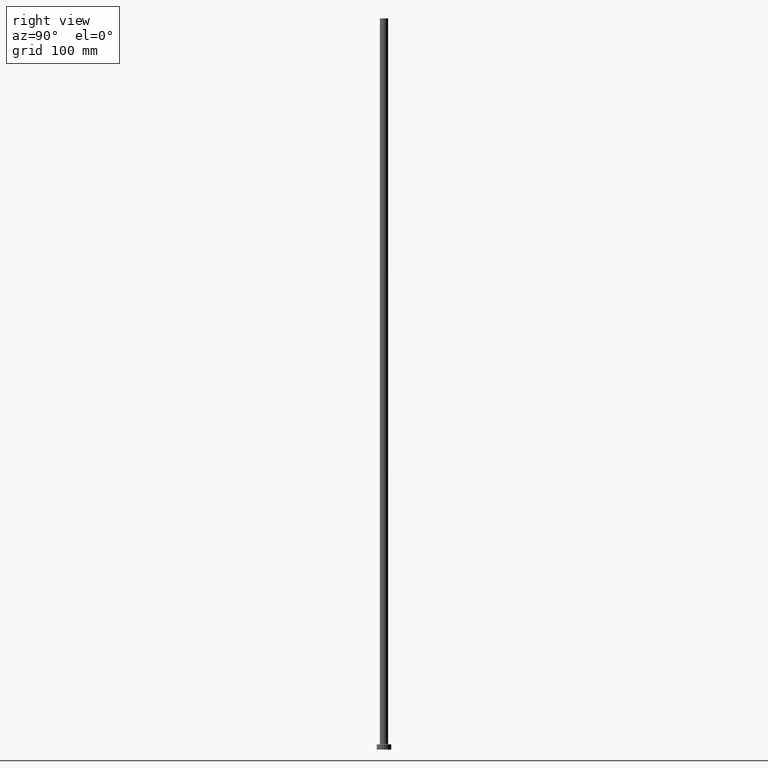
[diagram: clean part render]
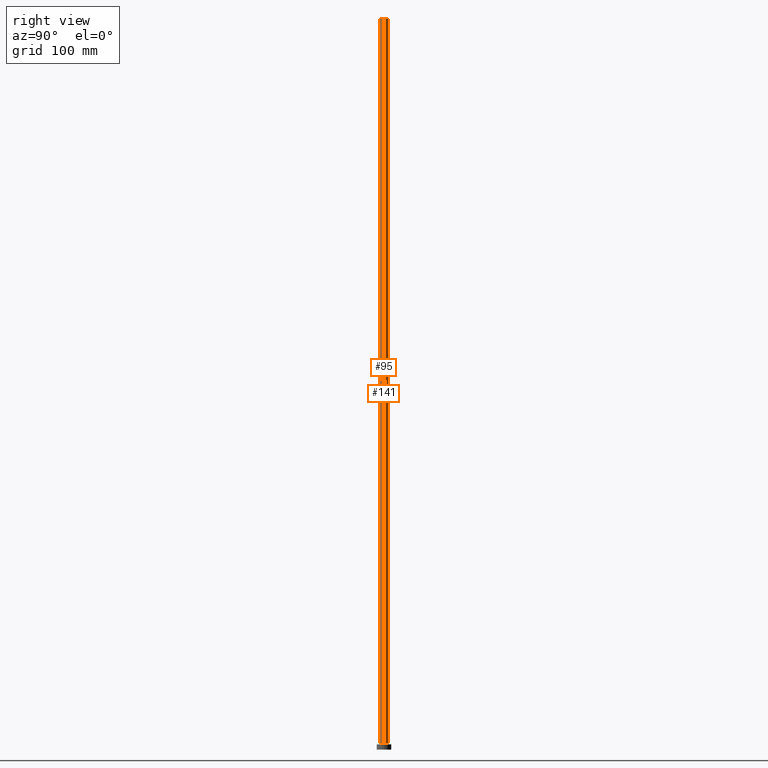
[diagram: same view with one multi-face feature highlighted, each face labeled with its STEP entity id]
A machine part, right view. The highlighted faces form ONE feature: a constant-radius fillet chain: 2 tangent blend faces with common blend radius 4 mm. The faces share edges in the B-rep.
Their STEP definitions:
[1] entity #141 (Cylinder):
#26 = DIRECTION ( 'NONE',  ( 0.000000000000000000, 0.000000000000000000, 1.000000000000000000 ) ) ;
#34 = VERTEX_POINT ( 'NONE', #139 ) ;
#39 = DIRECTION ( 'NONE',  ( -0.000000000000000000, -0.000000000000000000, -1.000000000000000000 ) ) ;
#62 = VERTEX_POINT ( 'NONE', #120 ) ;
#79 = CARTESIAN_POINT ( 'NONE',  ( 4.000000000000000000, 4.898587196589412829E-16, 700.0000000000000000 ) ) ;
#81 = CARTESIAN_POINT ( 'NONE',  ( 4.000000000000000000, 4.898587196589412829E-16, 700.0000000000000000 ) ) ;
#96 = VERTEX_POINT ( 'NONE', #81 ) ;
#101 = CARTESIAN_POINT ( 'NONE',  ( 0.000000000000000000, 0.000000000000000000, 700.0000000000000000 ) ) ;
#108 = DIRECTION ( 'NONE',  ( -1.000000000000000000, 0.000000000000000000, 0.000000000000000000 ) ) ;
#111 = CARTESIAN_POINT ( 'NONE',  ( 4.000000000000000000, 4.898587196589412829E-16, 5.499999999999949374 ) ) ;
#118 = EDGE_CURVE ( 'NONE', #96, #125, #358, .T. ) ;
#120 = CARTESIAN_POINT ( 'NONE',  ( -4.000000000000000000, 0.000000000000000000, 700.0000000000000000 ) ) ;
#125 = VERTEX_POINT ( 'NONE', #111 ) ;
#136 = CARTESIAN_POINT ( 'NONE',  ( 0.000000000000000000, 0.000000000000000000, 5.499999999999949374 ) ) ;
#138 = AXIS2_PLACEMENT_3D ( 'NONE', #136, #26, #444 ) ;
#139 = CARTESIAN_POINT ( 'NONE',  ( -4.000000000000000000, 0.000000000000000000, 5.499999999999949374 ) ) ;
#141 = ADVANCED_FACE ( 'NONE', ( #318 ), #461, .T. ) ;
#152 = CIRCLE ( 'NONE', #288, 4.000000000000000000 ) ;
#176 = CARTESIAN_POINT ( 'NONE',  ( -4.000000000000000000, 0.000000000000000000, 700.0000000000000000 ) ) ;
#184 = ORIENTED_EDGE ( 'NONE', *, *, #406, .F. ) ;
#205 = CARTESIAN_POINT ( 'NONE',  ( 0.000000000000000000, 0.000000000000000000, 700.0000000000000000 ) ) ;
#212 = DIRECTION ( 'NONE',  ( -0.000000000000000000, -0.000000000000000000, -1.000000000000000000 ) ) ;
#261 = VECTOR ( 'NONE', #212, 1000.000000000000000 ) ;
#288 = AXIS2_PLACEMENT_3D ( 'NONE', #101, #409, #412 ) ;
#303 = EDGE_CURVE ( 'NONE', #125, #34, #383, .T. ) ;
#309 = EDGE_CURVE ( 'NONE', #96, #62, #152, .T. ) ;
#318 = FACE_OUTER_BOUND ( 'NONE', #431, .T. ) ;
#320 = DIRECTION ( 'NONE',  ( -0.000000000000000000, -0.000000000000000000, -1.000000000000000000 ) ) ;
#334 = ORIENTED_EDGE ( 'NONE', *, *, #118, .T. ) ;
#349 = LINE ( 'NONE', #176, #460 ) ;
#358 = LINE ( 'NONE', #79, #261 ) ;
#382 = AXIS2_PLACEMENT_3D ( 'NONE', #205, #320, #108 ) ;
#383 = CIRCLE ( 'NONE', #138, 4.000000000000000000 ) ;
#401 = ORIENTED_EDGE ( 'NONE', *, *, #303, .T. ) ;
#406 = EDGE_CURVE ( 'NONE', #62, #34, #349, .T. ) ;
#409 = DIRECTION ( 'NONE',  ( 0.000000000000000000, 0.000000000000000000, 1.000000000000000000 ) ) ;
#412 = DIRECTION ( 'NONE',  ( 1.000000000000000000, 0.000000000000000000, 0.000000000000000000 ) ) ;
#431 = EDGE_LOOP ( 'NONE', ( #443, #334, #401, #184 ) ) ;
#443 = ORIENTED_EDGE ( 'NONE', *, *, #309, .F. ) ;
#444 = DIRECTION ( 'NONE',  ( 1.000000000000000000, 0.000000000000000000, 0.000000000000000000 ) ) ;
#460 = VECTOR ( 'NONE', #39, 1000.000000000000000 ) ;
#461 = CYLINDRICAL_SURFACE ( 'NONE', #382, 4.000000000000000000 ) ;
[2] entity #95 (Cylinder):
#6 = DIRECTION ( 'NONE',  ( -0.000000000000000000, -0.000000000000000000, -1.000000000000000000 ) ) ;
#24 = ORIENTED_EDGE ( 'NONE', *, *, #68, .F. ) ;
#34 = VERTEX_POINT ( 'NONE', #139 ) ;
#39 = DIRECTION ( 'NONE',  ( -0.000000000000000000, -0.000000000000000000, -1.000000000000000000 ) ) ;
#45 = CYLINDRICAL_SURFACE ( 'NONE', #323, 4.000000000000000000 ) ;
#62 = VERTEX_POINT ( 'NONE', #120 ) ;
#68 = EDGE_CURVE ( 'NONE', #62, #96, #227, .T. ) ;
#76 = CIRCLE ( 'NONE', #215, 4.000000000000000000 ) ;
#79 = CARTESIAN_POINT ( 'NONE',  ( 4.000000000000000000, 4.898587196589412829E-16, 700.0000000000000000 ) ) ;
#81 = CARTESIAN_POINT ( 'NONE',  ( 4.000000000000000000, 4.898587196589412829E-16, 700.0000000000000000 ) ) ;
#83 = CARTESIAN_POINT ( 'NONE',  ( 0.000000000000000000, 0.000000000000000000, 700.0000000000000000 ) ) ;
#95 = ADVANCED_FACE ( 'NONE', ( #394 ), #45, .T. ) ;
#96 = VERTEX_POINT ( 'NONE', #81 ) ;
#111 = CARTESIAN_POINT ( 'NONE',  ( 4.000000000000000000, 4.898587196589412829E-16, 5.499999999999949374 ) ) ;
#118 = EDGE_CURVE ( 'NONE', #96, #125, #358, .T. ) ;
#120 = CARTESIAN_POINT ( 'NONE',  ( -4.000000000000000000, 0.000000000000000000, 700.0000000000000000 ) ) ;
#125 = VERTEX_POINT ( 'NONE', #111 ) ;
#139 = CARTESIAN_POINT ( 'NONE',  ( -4.000000000000000000, 0.000000000000000000, 5.499999999999949374 ) ) ;
#148 = DIRECTION ( 'NONE',  ( 0.000000000000000000, 0.000000000000000000, 1.000000000000000000 ) ) ;
#176 = CARTESIAN_POINT ( 'NONE',  ( -4.000000000000000000, 0.000000000000000000, 700.0000000000000000 ) ) ;
#180 = EDGE_CURVE ( 'NONE', #34, #125, #76, .T. ) ;
#212 = DIRECTION ( 'NONE',  ( -0.000000000000000000, -0.000000000000000000, -1.000000000000000000 ) ) ;
#215 = AXIS2_PLACEMENT_3D ( 'NONE', #285, #148, #287 ) ;
#227 = CIRCLE ( 'NONE', #306, 4.000000000000000000 ) ;
#251 = DIRECTION ( 'NONE',  ( 0.000000000000000000, 0.000000000000000000, 1.000000000000000000 ) ) ;
#261 = VECTOR ( 'NONE', #212, 1000.000000000000000 ) ;
#265 = ORIENTED_EDGE ( 'NONE', *, *, #118, .F. ) ;
#276 = DIRECTION ( 'NONE',  ( -1.000000000000000000, 0.000000000000000000, 0.000000000000000000 ) ) ;
#285 = CARTESIAN_POINT ( 'NONE',  ( 0.000000000000000000, 0.000000000000000000, 5.499999999999949374 ) ) ;
#287 = DIRECTION ( 'NONE',  ( 1.000000000000000000, 0.000000000000000000, 0.000000000000000000 ) ) ;
#306 = AXIS2_PLACEMENT_3D ( 'NONE', #83, #251, #397 ) ;
#323 = AXIS2_PLACEMENT_3D ( 'NONE', #456, #6, #276 ) ;
#349 = LINE ( 'NONE', #176, #460 ) ;
#358 = LINE ( 'NONE', #79, #261 ) ;
#365 = ORIENTED_EDGE ( 'NONE', *, *, #180, .T. ) ;
#394 = FACE_OUTER_BOUND ( 'NONE', #420, .T. ) ;
#397 = DIRECTION ( 'NONE',  ( 1.000000000000000000, 0.000000000000000000, 0.000000000000000000 ) ) ;
#400 = ORIENTED_EDGE ( 'NONE', *, *, #406, .T. ) ;
#406 = EDGE_CURVE ( 'NONE', #62, #34, #349, .T. ) ;
#420 = EDGE_LOOP ( 'NONE', ( #265, #24, #400, #365 ) ) ;
#456 = CARTESIAN_POINT ( 'NONE',  ( 0.000000000000000000, 0.000000000000000000, 700.0000000000000000 ) ) ;
#460 = VECTOR ( 'NONE', #39, 1000.000000000000000 ) ;